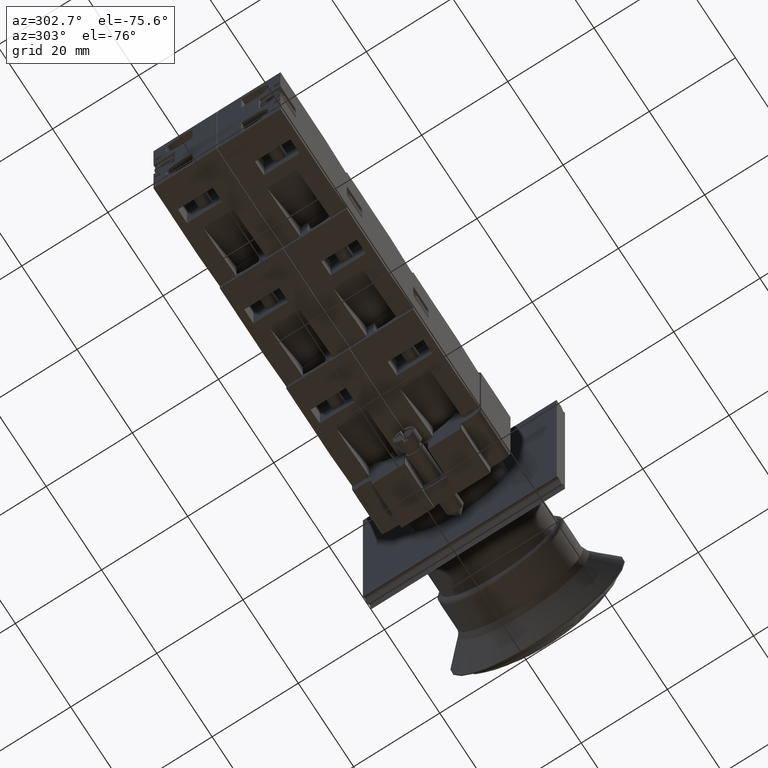
[diagram: clean part render]
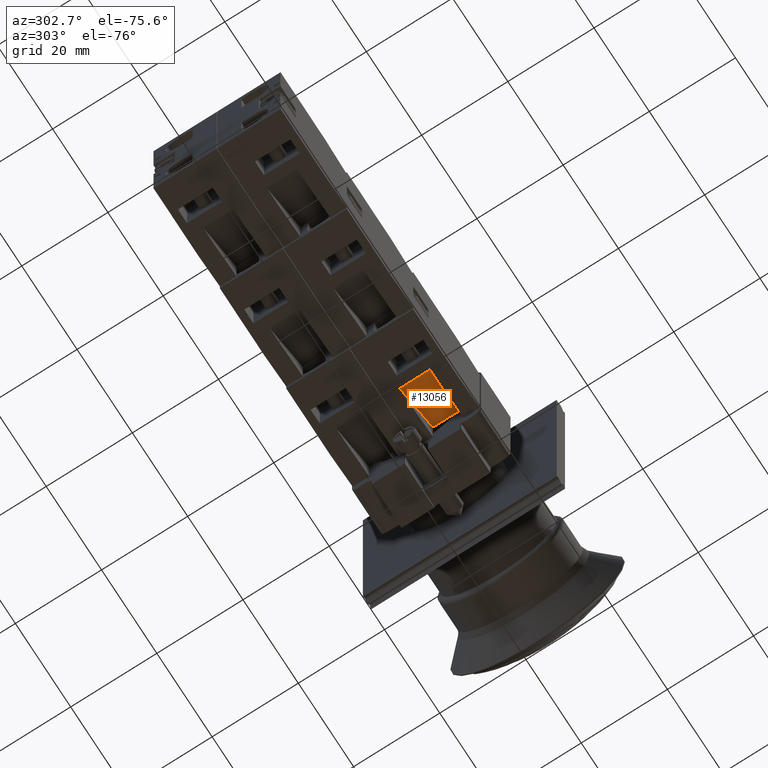
[diagram: same view with one face highlighted and labeled with its STEP entity id]
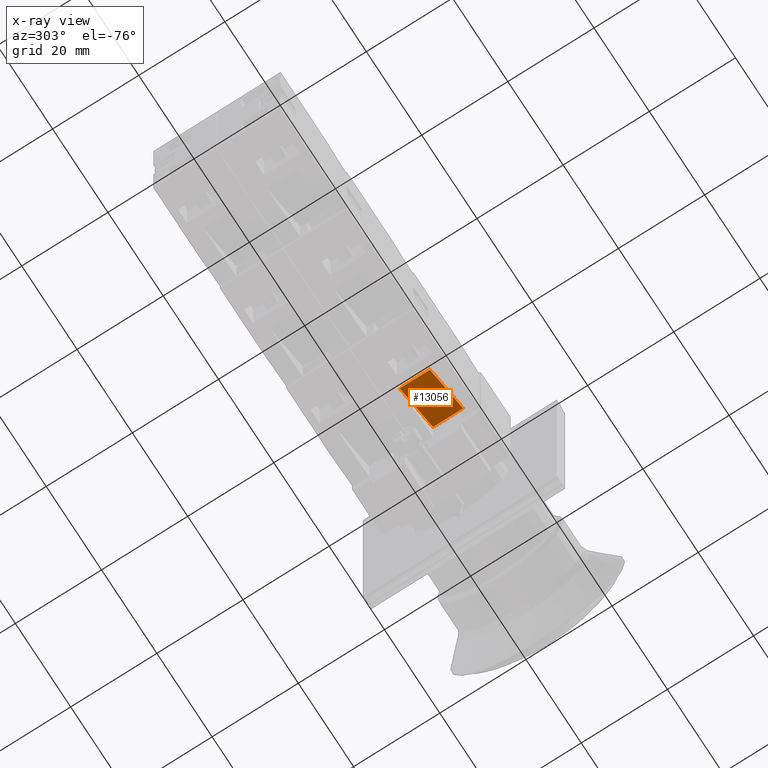
[diagram: x-ray of the same camera — body ghosted, the highlighted face saturated]
A machine part, auxiliary view. The second image highlights one B-rep face of the part: STEP entity #13056.
The next image is the same camera in x-ray: the body ghosted, the highlighted face saturated — about 0% of this face is hidden behind the body in this view.
In plain terms, the highlighted face is a freeform B-spline surface patch.
Its self-contained STEP definition (entity closure, byte-faithful):
#13001=CARTESIAN_POINT('',(-44.936741828918457,11.797073323279610,10.850000000000000));
#13002=VERTEX_POINT('',#13001);
#13009=CARTESIAN_POINT('',(-35.936741828918450,-0.202926676720384,10.850000000000000));
#13010=VERTEX_POINT('',#13009);
#13011=CARTESIAN_POINT('',(-35.936741828918450,-0.202926676720384,10.850000000000000));
#13012=DIRECTION('',(-0.600000000000000,0.800000000000000,0.0));
#13013=VECTOR('',#13012,15.0);
#13014=LINE('',#13011,#13013);
#13015=EDGE_CURVE('',#13010,#13002,#13014,.T.);
#13026=CARTESIAN_POINT('',(-44.936741828918464,11.797073323279616,3.850000000000000));
#13027=CARTESIAN_POINT('',(-44.936741828918464,11.797073323279616,10.850000000000001));
#13028=CARTESIAN_POINT('',(-35.936741828918443,-0.202926676720384,3.850000000000000));
#13029=CARTESIAN_POINT('',(-35.936741828918450,-0.202926676720384,10.850000000000001));
#13030=B_SPLINE_SURFACE_WITH_KNOTS('',1,1,((#13026,#13028),(#13027,#13029)),.UNSPECIFIED.,.F.,.F.,.U.,(2,2),(2,2),(0.0,7.000000000000002),(0.0,15.000000000000012),.UNSPECIFIED.);
#13031=CARTESIAN_POINT('',(-44.936741828918457,11.797073323279610,3.850000000000001));
#13032=VERTEX_POINT('',#13031);
#13033=CARTESIAN_POINT('',(-35.936741828918450,-0.202926676720384,3.850000000000001));
#13034=VERTEX_POINT('',#13033);
#13035=CARTESIAN_POINT('',(-44.936741828918457,11.797073323279610,3.850000000000001));
#13036=DIRECTION('',(0.600000000000000,-0.800000000000000,0.0));
#13037=VECTOR('',#13036,15.0);
#13038=LINE('',#13035,#13037);
#13039=EDGE_CURVE('',#13032,#13034,#13038,.T.);
#13040=ORIENTED_EDGE('',*,*,#13039,.T.);
#13041=CARTESIAN_POINT('',(-35.936741828918450,-0.202926676720384,10.850000000000000));
#13042=DIRECTION('',(0.0,0.0,-1.0));
#13043=VECTOR('',#13042,6.999999999999999);
#13044=LINE('',#13041,#13043);
#13045=EDGE_CURVE('',#13010,#13034,#13044,.T.);
#13046=ORIENTED_EDGE('',*,*,#13045,.F.);
#13047=ORIENTED_EDGE('',*,*,#13015,.T.);
#13048=CARTESIAN_POINT('',(-44.936741828918457,11.797073323279610,3.850000000000001));
#13049=DIRECTION('',(0.0,0.0,1.0));
#13050=VECTOR('',#13049,6.999999999999999);
#13051=LINE('',#13048,#13050);
#13052=EDGE_CURVE('',#13032,#13002,#13051,.T.);
#13053=ORIENTED_EDGE('',*,*,#13052,.F.);
#13054=EDGE_LOOP('',(#13040,#13046,#13047,#13053));
#13055=FACE_OUTER_BOUND('',#13054,.T.);
#13056=ADVANCED_FACE('',(#13055),#13030,.F.);